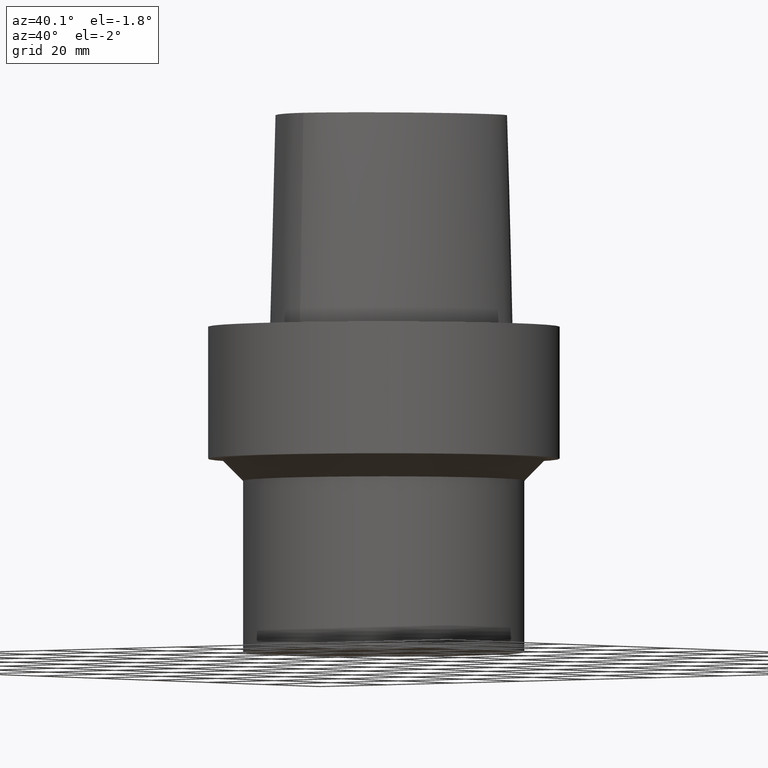
[diagram: clean part render]
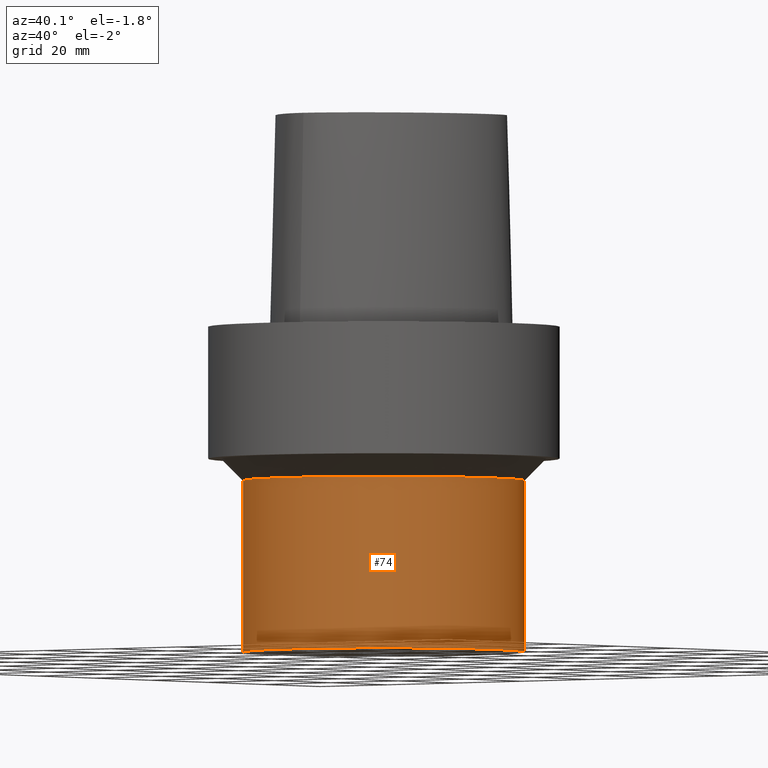
[diagram: same view with one face highlighted and labeled with its STEP entity id]
A machine part, auxiliary view. The second image highlights one B-rep face of the part: STEP entity #74.
In plain terms, the highlighted cylindrical surface (bore or boss wall) has radius 32 mm, axis along (0, 0, -1).
Its self-contained STEP definition (entity closure, byte-faithful):
#52=EDGE_CURVE('Unnamed[1]',#115,#115,#116,.T.);
#71=EDGE_CURVE('Unnamed[1]',#145,#145,#146,.T.);
#74=ADVANCED_FACE('Unnamed[1]',(#149,#150),#151,.T.);
#115=VERTEX_POINT('',#336);
#116=CIRCLE('',#337,32.0);
#145=VERTEX_POINT('',#373);
#146=CIRCLE('',#374,32.0);
#149=FACE_BOUND('',#378,.T.);
#150=FACE_BOUND('',#379,.T.);
#151=CYLINDRICAL_SURFACE('',#380,32.0);
#336=CARTESIAN_POINT('',(4.53119315684521E-015,32.0,-74.0));
#337=AXIS2_PLACEMENT_3D('',#785,#786,#787);
#373=CARTESIAN_POINT('',(2.14313189850791E-015,32.0,-35.0000000000007));
#374=AXIS2_PLACEMENT_3D('',#820,#821,#822);
#378=EDGE_LOOP('',(#824));
#379=EDGE_LOOP('',(#825));
#380=AXIS2_PLACEMENT_3D('',#826,#827,#828);
#785=CARTESIAN_POINT('',(4.53119315684521E-015,9.06238631369041E-015,-74.0));
#786=DIRECTION('',(6.12323399573677E-017,1.22464679914735E-016,-1.0));
#787=DIRECTION('',(-1.23259516440783E-032,1.0,1.22464679914735E-016));
#820=CARTESIAN_POINT('',(2.14313189850791E-015,4.28626379701582E-015,-35.0000000000007));
#821=DIRECTION('',(6.12323399573677E-017,1.22464679914735E-016,-1.0));
#822=DIRECTION('',(-1.23259516440783E-032,1.0,1.22464679914735E-016));
#824=ORIENTED_EDGE('',*,*,#52,.F.);
#825=ORIENTED_EDGE('',*,*,#71,.T.);
#826=CARTESIAN_POINT('',(3.33716252767656E-015,6.67432505535312E-015,-54.5000000000004));
#827=DIRECTION('',(6.12323399573677E-017,1.22464679914735E-016,-1.0));
#828=DIRECTION('',(-1.23259516440783E-032,1.0,1.22464679914735E-016));